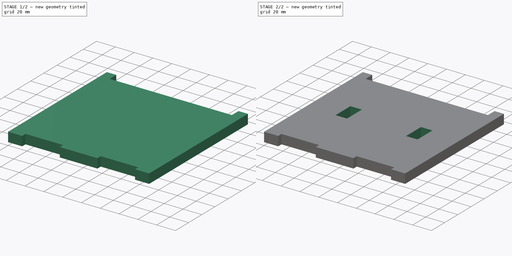
[diagram: build sequence overview — one tinted view per stage of 2, left to right]
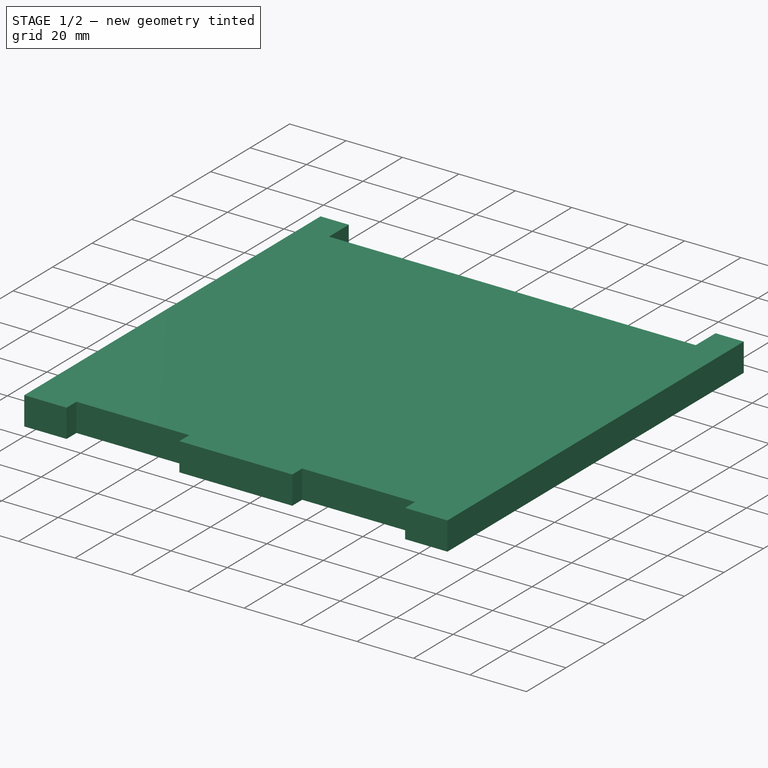
[diagram: stage 1 of 2 — iso view after this stage's code; geometry added in this stage tinted green]
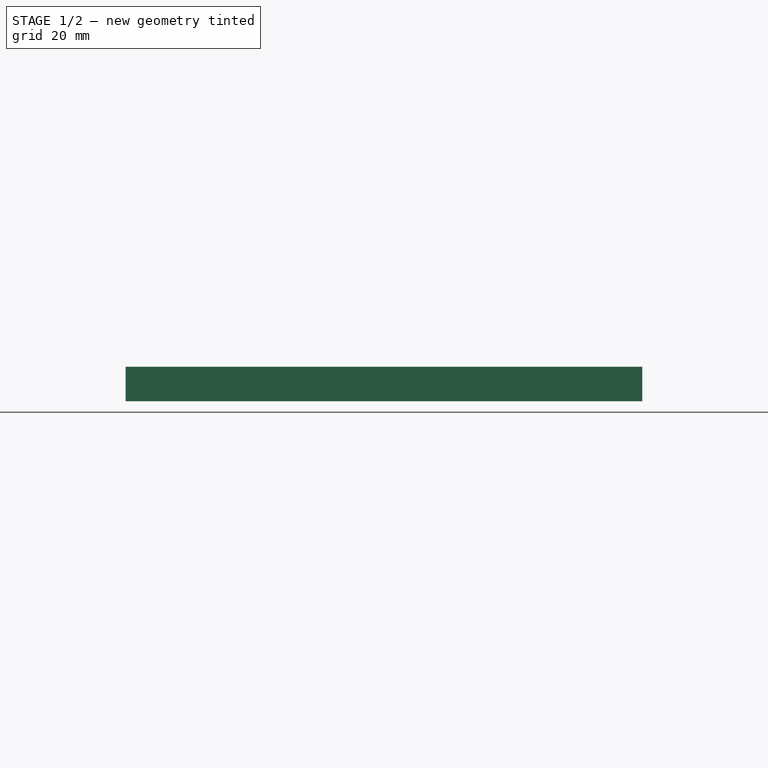
[diagram: stage 1 of 2 — front view after this stage's code; geometry added in this stage tinted green]
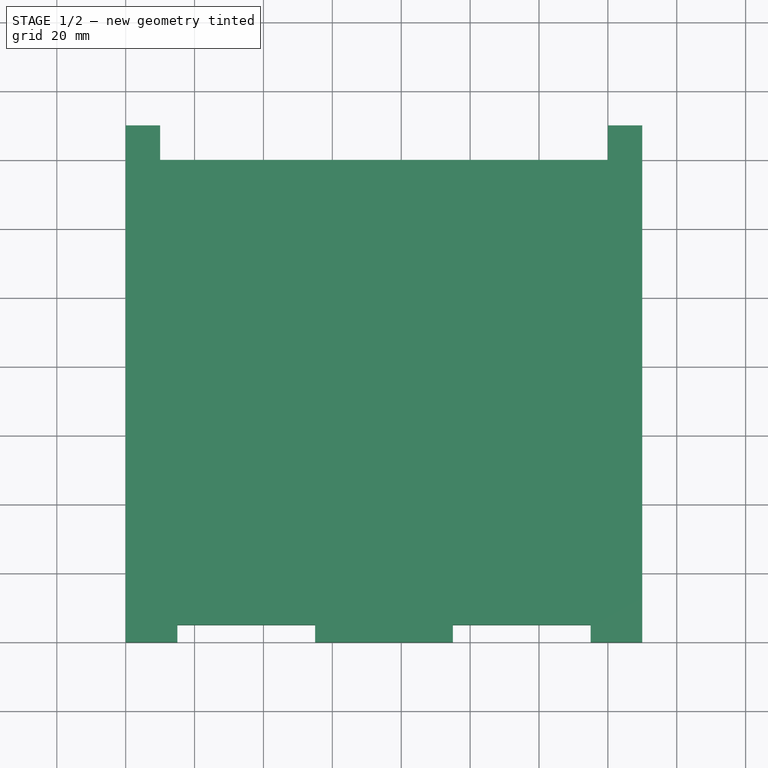
[diagram: stage 1 of 2 — top view after this stage's code; geometry added in this stage tinted green]
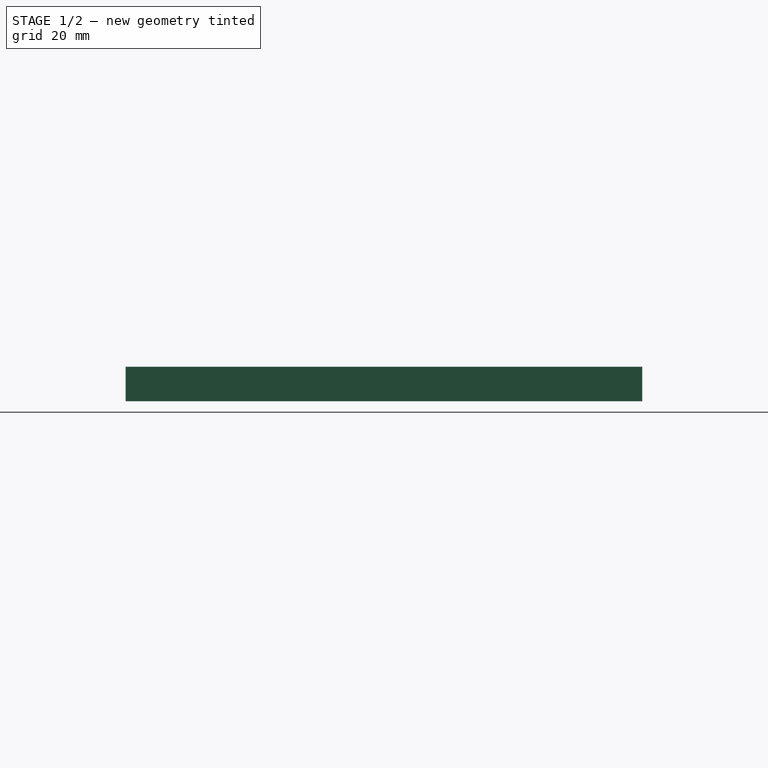
[diagram: stage 1 of 2 — right view after this stage's code; geometry added in this stage tinted green]
FCSTD DOCUMENT  (FreeCAD 0.19R24276 (Git))
Label: side_left
License: All rights reserved
LicenseURL: http://en.wikipedia.org/wiki/All_rights_reserved
objects: Sketcher::SketchObject×2, PartDesign::Pad×1, PartDesign::Pocket×1, PartDesign::Body×1, TechDraw::DrawSVGTemplate×1, TechDraw::DrawViewPart×1, TechDraw::DrawPage×1
note: 7 computed .brp shape members not serialized (recipe doc carries the construction recipe); baked Part::Feature solids carry a one-line shape summary decoded from their .brp

FEATURE [Sketcher::SketchObject] Sketch
  FullyConstrained = true
  MapMode = 5
  Support = -> [XY_Plane]
  sketch-geometry (16):
    g0: LineSegment StartX=150 StartY=0 StartZ=0 EndX=150 EndY=150 EndZ=0
    g1: LineSegment StartX=150 StartY=150 StartZ=0 EndX=140 EndY=150 EndZ=0
    g2: LineSegment StartX=140 StartY=150 StartZ=0 EndX=140 EndY=140 EndZ=0
    g3: LineSegment StartX=140 StartY=140 StartZ=0 EndX=10 EndY=140 EndZ=0
    g4: LineSegment StartX=10 StartY=140 StartZ=0 EndX=10 EndY=150 EndZ=0
    g5: LineSegment StartX=10 StartY=150 StartZ=0 EndX=0 EndY=150 EndZ=0
    g6: LineSegment StartX=0 StartY=0 StartZ=0 EndX=0 EndY=150 EndZ=0
    g7: LineSegment StartX=15 StartY=5 StartZ=0 EndX=55 EndY=5 EndZ=0
    g8: LineSegment StartX=55 StartY=5 StartZ=0 EndX=55 EndY=0 EndZ=0
    g9: LineSegment StartX=55 StartY=0 StartZ=0 EndX=95 EndY=0 EndZ=0
    g10: LineSegment StartX=95 StartY=0 StartZ=0 EndX=95 EndY=5 EndZ=0
    g11: LineSegment StartX=95 StartY=5 StartZ=0 EndX=135 EndY=5 EndZ=0
    g12: LineSegment StartX=135 StartY=5 StartZ=0 EndX=135 EndY=0 EndZ=0
    g13: LineSegment StartX=135 StartY=0 StartZ=0 EndX=150 EndY=0 EndZ=0
    g14: LineSegment StartX=15 StartY=5 StartZ=0 EndX=15 EndY=0 EndZ=0
    g15: LineSegment StartX=15 StartY=0 StartZ=0 EndX=0 EndY=0 EndZ=0
  constraints (47):
    c: Vertical(g0)
    c: Coincident(g0,g1)
    c: Horizontal(g1)
    c: Coincident(g1,g2)
    c: Coincident(g2,g3)
    c: Horizontal(g3)
    c: Vertical(g2)
    c: Coincident(g3,g4)
    c: Vertical(g4)
    c: Coincident(g4,g5)
    c: Vertical(g6)
    c: Horizontal(g5)
    c: Equal(g1,g5)
    c: Equal(g6,g0)
    c: DistanceX(g5,g5) = 10
    c: DistanceY(g0,g0) = 150
    c: DistanceY(g2,g2) = 10
    c: Horizontal(g7)
    c: Coincident(g7,g8)
    c: PointOnObject(g8,g-1)
    c: Coincident(g8,g9)
    c: PointOnObject(g9,g-1)
    c: Coincident(g9,g10)
    c: Coincident(g10,g11)
    c: Horizontal(g11)
    c: Coincident(g11,g12)
    c: PointOnObject(g12,g-1)
    c: Vertical(g12)
    c: Coincident(g12,g13)
    c: Coincident(g13,g0)
    c: Horizontal(g13)
    c: Coincident(g7,g14)
    c: PointOnObject(g14,g-1)
    c: Vertical(g14)
    c: Coincident(g14,g15)
    c: Vertical(g8)
    c: Vertical(g10)
    c: Equal(g15,g13)
    c: Equal(g7,g11)
    c: DistanceX(g7,g7) = 40
    c: DistanceX(g15,g15) = 15
    c: DistanceX(g3,g3) = 130
    c: DistanceY(g8,g8) = 5
    c: DistanceY(g10,g10) = 5
    c: Coincident(g6,g15)
    c: Coincident(g-1,g6)
    c: Coincident(g5,g6)
FEATURE [PartDesign::Pad] Pad
  Direction = (1,1,1)
  Length = 10
  Length2 = 100
  Midplane = true
  Profile = -> Sketch
  Type = 0
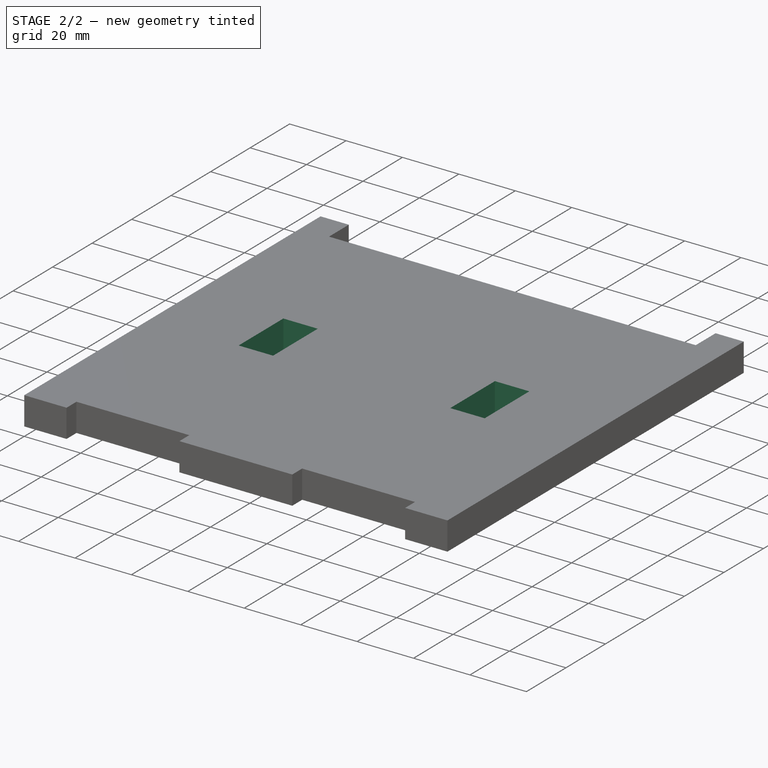
[diagram: stage 2 of 2 — iso view after this stage's code; geometry added in this stage tinted green]
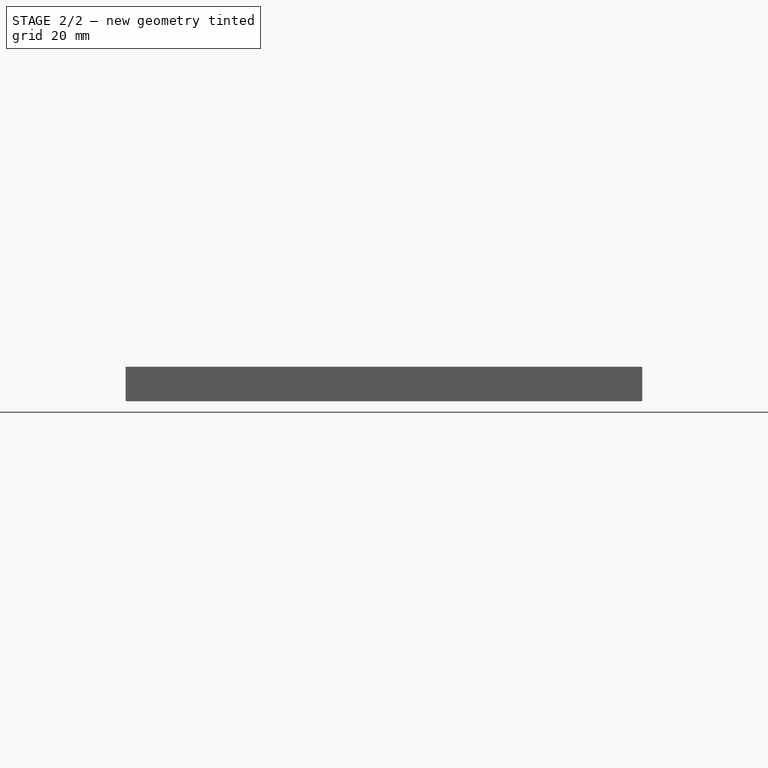
[diagram: stage 2 of 2 — front view after this stage's code; geometry added in this stage tinted green]
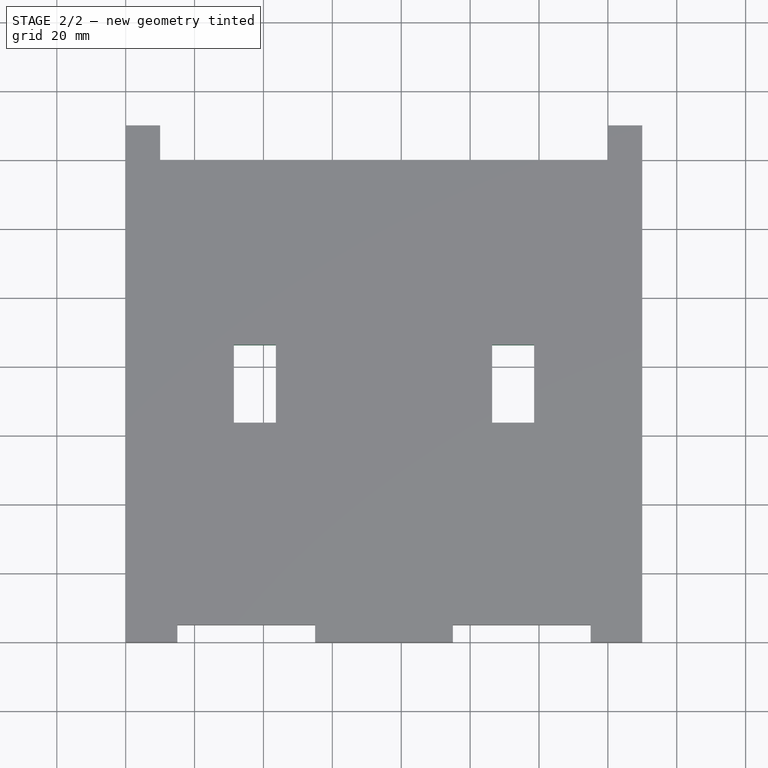
[diagram: stage 2 of 2 — top view after this stage's code; geometry added in this stage tinted green]
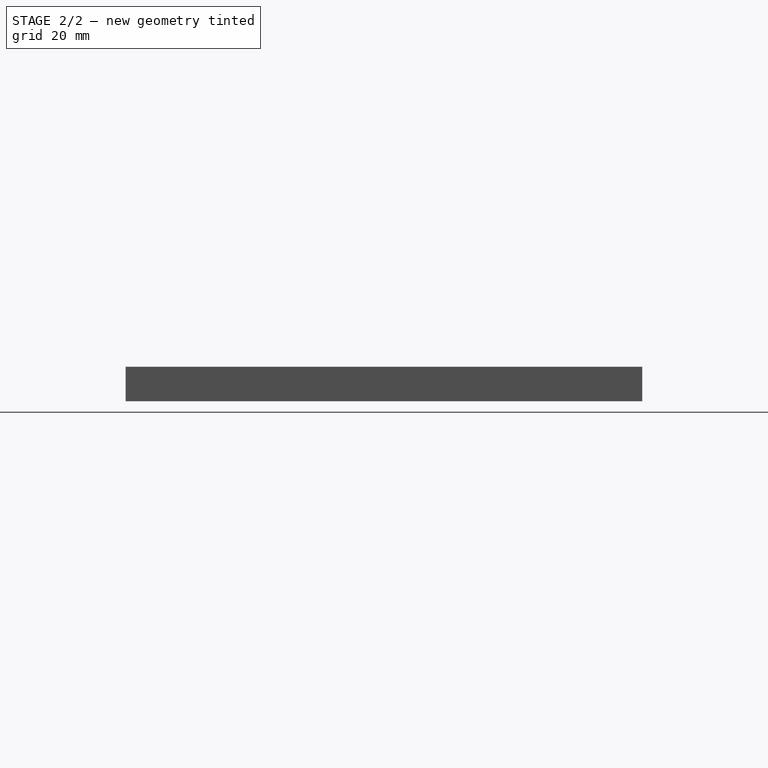
[diagram: stage 2 of 2 — right view after this stage's code; geometry added in this stage tinted green]
FEATURE [Sketcher::SketchObject] Sketch001
  FullyConstrained = false
  MapMode = 5
  Placement = pos=(0,0,5) rot=(0,0,1;0rad)
  Support = -> [Pad]
  sketch-geometry (8):
    g0: LineSegment StartX=31.4 StartY=86.3 StartZ=0 EndX=43.6 EndY=86.3 EndZ=0
    g1: LineSegment StartX=43.6 StartY=86.3 StartZ=0 EndX=43.6 EndY=63.7 EndZ=0
    g2: LineSegment StartX=43.6 StartY=63.7 StartZ=0 EndX=31.4 EndY=63.7 EndZ=0
    g3: LineSegment StartX=31.4 StartY=63.7 StartZ=0 EndX=31.4 EndY=86.3 EndZ=0
    g4: LineSegment StartX=118.6 StartY=63.7 StartZ=0 EndX=106.4 EndY=63.7 EndZ=0
    g5: LineSegment StartX=106.4 StartY=86.3 StartZ=0 EndX=118.6 EndY=86.3 EndZ=0
    g6: LineSegment StartX=118.6 StartY=86.3 StartZ=0 EndX=118.6 EndY=63.7 EndZ=0
    g7: LineSegment StartX=106.4 StartY=63.7 StartZ=0 EndX=106.4 EndY=86.3 EndZ=0
  constraints (23):
    c: Coincident(g0,g1)
    c: Coincident(g1,g2)
    c: Coincident(g2,g3)
    c: Coincident(g3,g0)
    c: Horizontal(g0)
    c: Horizontal(g2)
    c: Vertical(g1)
    c: Vertical(g3)
    c: DistanceX(g2,g2) = 12.2
    c: DistanceY(g1,g1) = 22.6
    c: Coincident(g5,g6)
    c: Coincident(g6,g4)
    c: Coincident(g4,g7)
    c: Coincident(g7,g5)
    c: Horizontal(g5)
    c: Horizontal(g4)
    c: Vertical(g6)
    c: Vertical(g7)
    c: Equal(g1,g6) = 22.6
    c: DistanceX(g-1,g0) = 31.4
    c: DistanceY(g0) = 86.3
    c: DistanceX(g5) = 118.6
    c: DistanceY(g5) = 86.3
FEATURE [PartDesign::Pocket] Pocket
  BaseFeature = -> Pad
  Length = 5
  Length2 = 100
  Profile = -> Sketch001
  Type = 1
FEATURE [PartDesign::Body] Body
  Group = -> [Sketch,Pad,Sketch001,Pocket]
  Origin = -> Origin
  Tip = -> Pocket
FEATURE [TechDraw::DrawSVGTemplate] Template
  EditableTexts = Designed_by_Name=Designed by Name; Drawing_number=Drawing number; FC-Date=Date; FC-SC=Scale; FC-SH=Sheet; FC-Title=Title; Subtitle=Subtitle; Weight=Weight
  Height = 210
  Orientation = 1
  Width = 297
FEATURE [TechDraw::DrawViewPart] View
  CoarseView = false
  Direction = (0,0,1)
  Focus = 100
  HardHidden = false
  IsoCount = 0
  IsoHidden = false
  IsoVisible = false
  LockPosition = false
  Perspective = false
  Rotation = 0
  ScaleType = 0
  SeamHidden = false
  SeamVisible = true
  SmoothHidden = false
  SmoothVisible = true
  Source = -> [Pocket]
  X = 88.5
  XDirection = (1,0,0)
  Y = 117.706
FEATURE [TechDraw::DrawPage] Page
  KeepUpdated = true
  NextBalloonIndex = 1
  ProjectionType = 0
  Template = -> Template
  Views = -> [View]
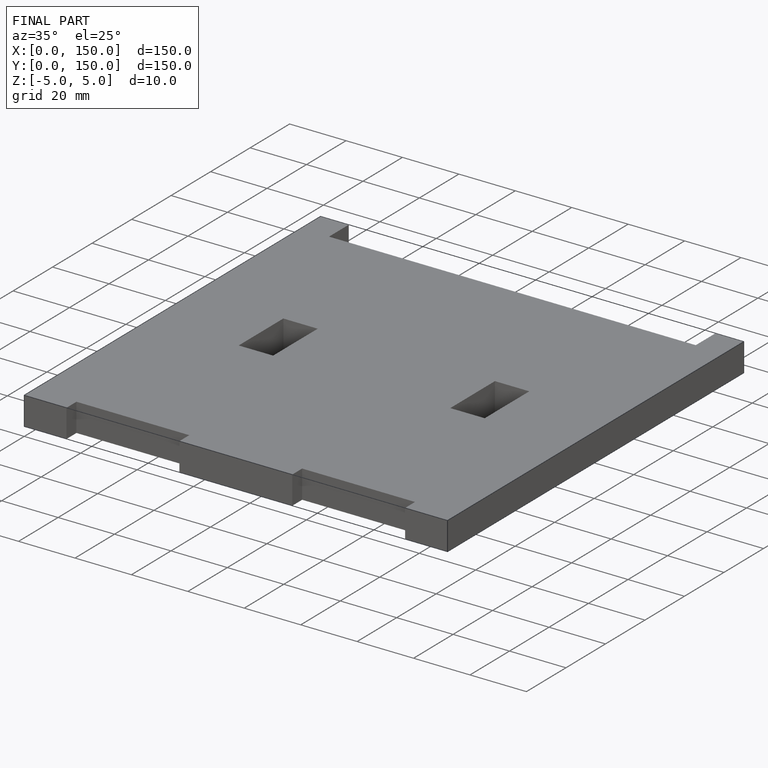
[diagram: finished part — iso view with bounding-box wireframe]
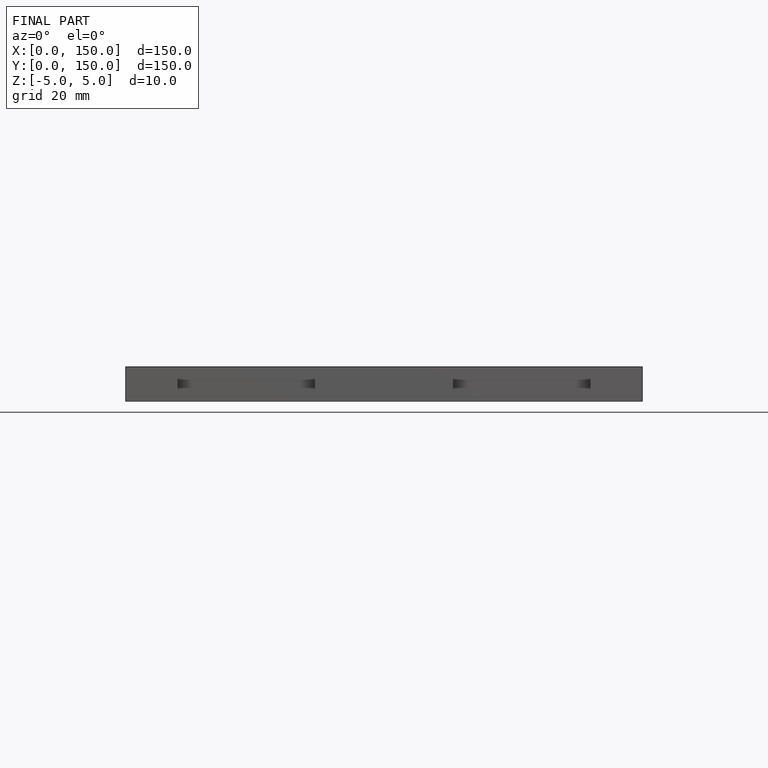
[diagram: finished part — front view with bounding-box wireframe]
